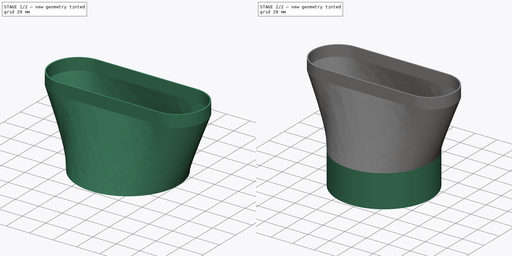
[diagram: build sequence overview — one tinted view per stage of 2, left to right]
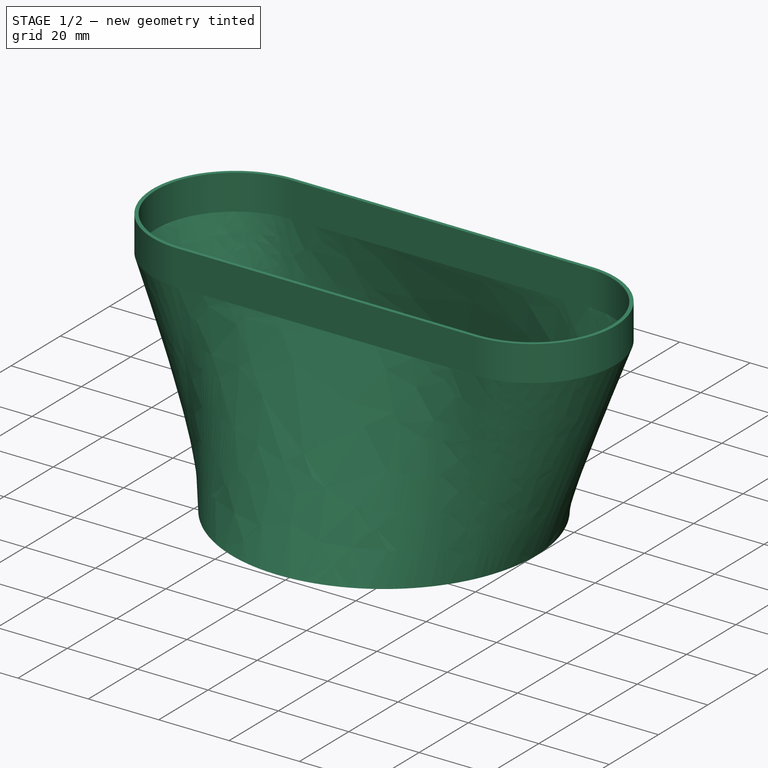
[diagram: stage 1 of 2 — iso view after this stage's code; geometry added in this stage tinted green]
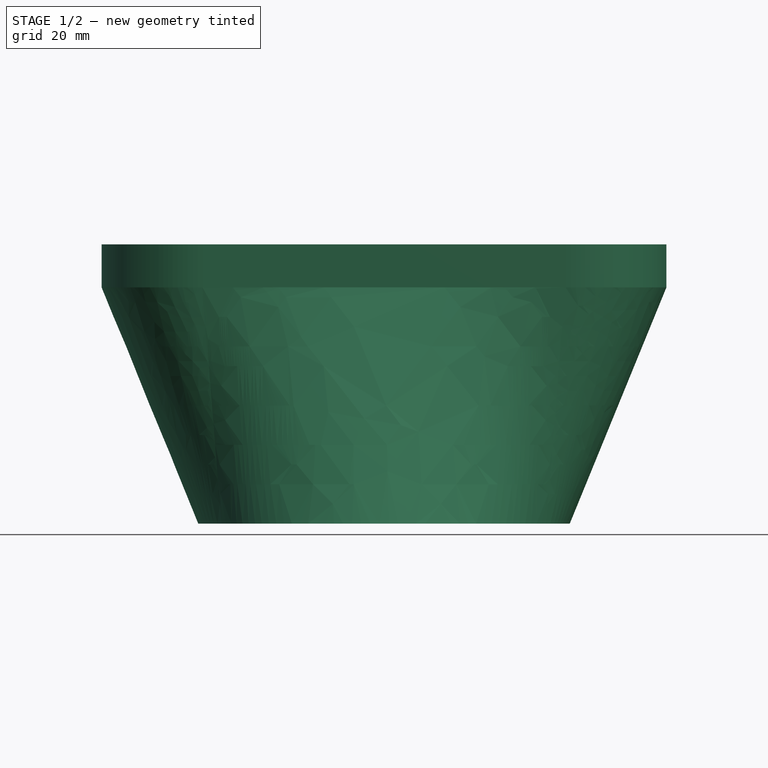
[diagram: stage 1 of 2 — front view after this stage's code; geometry added in this stage tinted green]
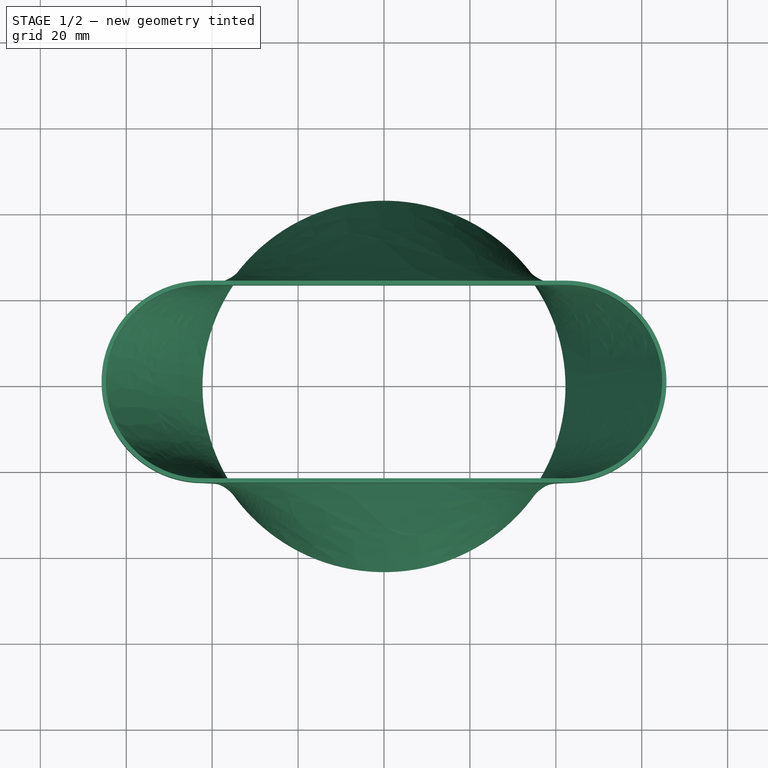
[diagram: stage 1 of 2 — top view after this stage's code; geometry added in this stage tinted green]
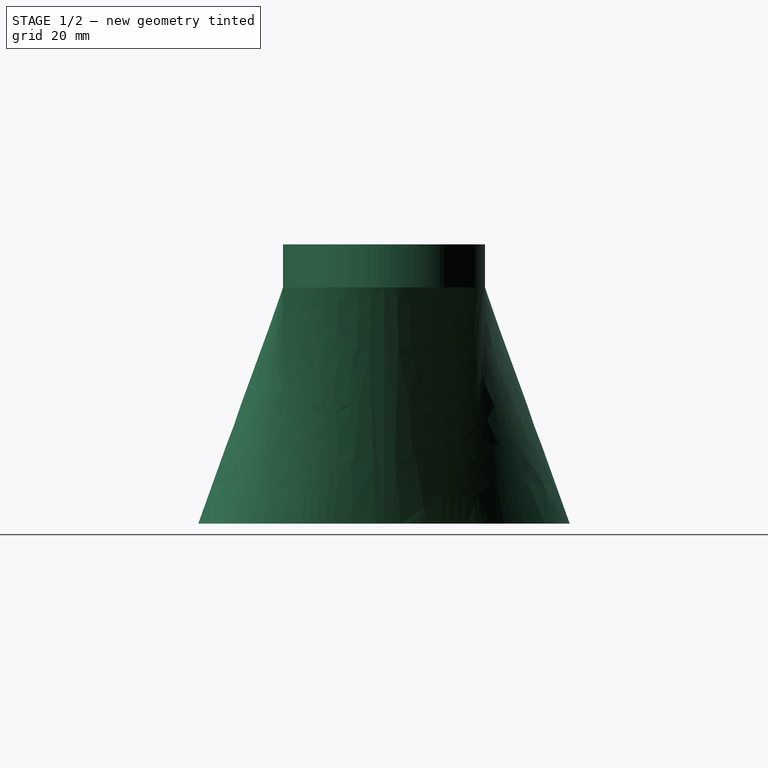
[diagram: stage 1 of 2 — right view after this stage's code; geometry added in this stage tinted green]
FCSTD DOCUMENT  (FreeCAD 0.21R33771 (Git))
Label: MilwaukeeBlowerAdapter
License: All rights reserved
LicenseURL: https://en.wikipedia.org/wiki/All_rights_reserved
objects: Sketcher::SketchObject×2, PartDesign::Pad×2, PartDesign::Plane×1, PartDesign::AdditiveLoft×1, PartDesign::Body×1
note: 10 computed .brp shape members not serialized (recipe doc carries the construction recipe); baked Part::Feature solids carry a one-line shape summary decoded from their .brp

FEATURE [Sketcher::SketchObject] Sketch
  FullyConstrained = true
  MapMode = 5
  Support = -> [XY_Plane]
  sketch-geometry (4):
    g0: Circle CenterX=0 CenterY=0 CenterZ=0 NormalX=0 NormalY=0 NormalZ=1 AngleXU=0 Radius=42.25
    g1: Circle CenterX=0 CenterY=0 CenterZ=0 NormalX=0 NormalY=0 NormalZ=1 AngleXU=0 Radius=43.25
    g2: GeomPoint X=-42.25 Y=0 Z=0
    g3: GeomPoint X=-43.25 Y=0 Z=0
  constraints (8):
    c: Coincident(g0,g-1)
    c: Diameter(g0) = 84.5
    c: Coincident(g1,g0)
    c: PointOnObject(g2,g0)
    c: PointOnObject(g3,g1)
    c: PointOnObject(g3,g-1)
    c: PointOnObject(g2,g-1)
    c: DistanceX(g3,g2) = 1
FEATURE [PartDesign::Plane] DatumPlane
  AttachmentOffset = pos=(0,0,55) rot=(0,0,1;0rad)
  Length = 152.83
  MapMode = 2
  Placement = pos=(0,0,55) rot=(0,0,1;0rad)
  ResizeMode = 0
  Support = -> [Sketch]
  Width = 107.83
FEATURE [Sketcher::SketchObject] Sketch001
  ExternalGeometry = -> [Sketch]
  FullyConstrained = true
  MapMode = 5
  Placement = pos=(0,0,55) rot=(0,0,1;0rad)
  Support = -> [DatumPlane]
  sketch-geometry (8):
    g0: ArcOfCircle CenterX=-42.25 CenterY=0 CenterZ=0 NormalX=0 NormalY=0 NormalZ=1 AngleXU=0 Radius=22.5 StartAngle=1.5708 EndAngle=4.71239
    g1: ArcOfCircle CenterX=42.25 CenterY=0 CenterZ=0 NormalX=0 NormalY=0 NormalZ=1 AngleXU=0 Radius=22.5 StartAngle=4.71239 EndAngle=7.85398
    g2: LineSegment StartX=-42.25 StartY=-22.5 StartZ=0 EndX=42.25 EndY=-22.5 EndZ=0
    g3: LineSegment StartX=42.25 StartY=22.5 StartZ=0 EndX=-42.25 EndY=22.5 EndZ=0
    g4: ArcOfCircle CenterX=-42.25 CenterY=0 CenterZ=0 NormalX=0 NormalY=0 NormalZ=1 AngleXU=0 Radius=23.5 StartAngle=1.5708 EndAngle=4.71239
    g5: ArcOfCircle CenterX=42.25 CenterY=0 CenterZ=0 NormalX=0 NormalY=0 NormalZ=1 AngleXU=0 Radius=23.5 StartAngle=4.71239 EndAngle=7.85398
    g6: LineSegment StartX=-42.25 StartY=-23.5 StartZ=0 EndX=42.25 EndY=-23.5 EndZ=0
    g7: LineSegment StartX=42.25 StartY=23.5 StartZ=0 EndX=-42.25 EndY=23.5 EndZ=0
  constraints (17):
    c: Tangent(g0,g2) = -1.5708
    c: Tangent(g2,g1) = -1.5708
    c: Tangent(g1,g3) = -1.5708
    c: Tangent(g3,g0) = -1.5708
    c: Equal(g0,g1)
    c: Symmetric(g0,g1,g-2)
    c: PointOnObject(g0,g-1)
    c: PointOnObject(g0,g-3)
    c: DistanceY(g0,g0) = 45
    c: Tangent(g4,g6) = -1.5708
    c: Tangent(g6,g5) = -1.5708
    c: Tangent(g5,g7) = -1.5708
    c: Tangent(g7,g4) = -1.5708
    c: Equal(g4,g5)
    c: Coincident(g4,g0)
    c: Coincident(g5,g1)
    c: DistanceY(g0,g4) = 1
FEATURE [PartDesign::AdditiveLoft] AdditiveLoft
  Closed = false
  Profile = -> Sketch
  Ruled = false
  Sections = -> [Sketch001]
FEATURE [PartDesign::Pad] Pad
  BaseFeature = -> AdditiveLoft
  Direction = (0,0,1)
  Length = 10
  Length2 = 10
  Profile = -> AdditiveLoft [Face3]
  Type = 0
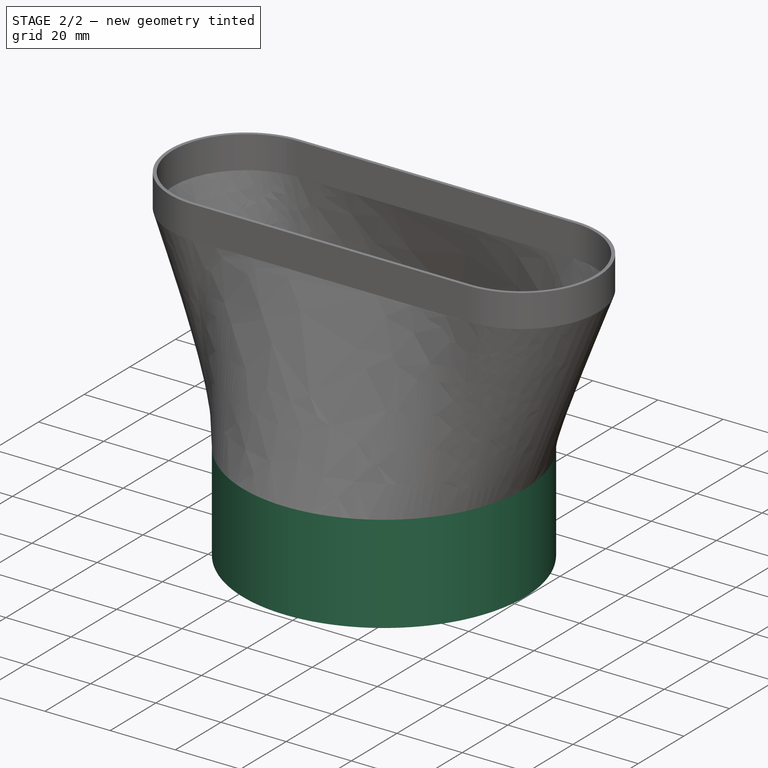
[diagram: stage 2 of 2 — iso view after this stage's code; geometry added in this stage tinted green]
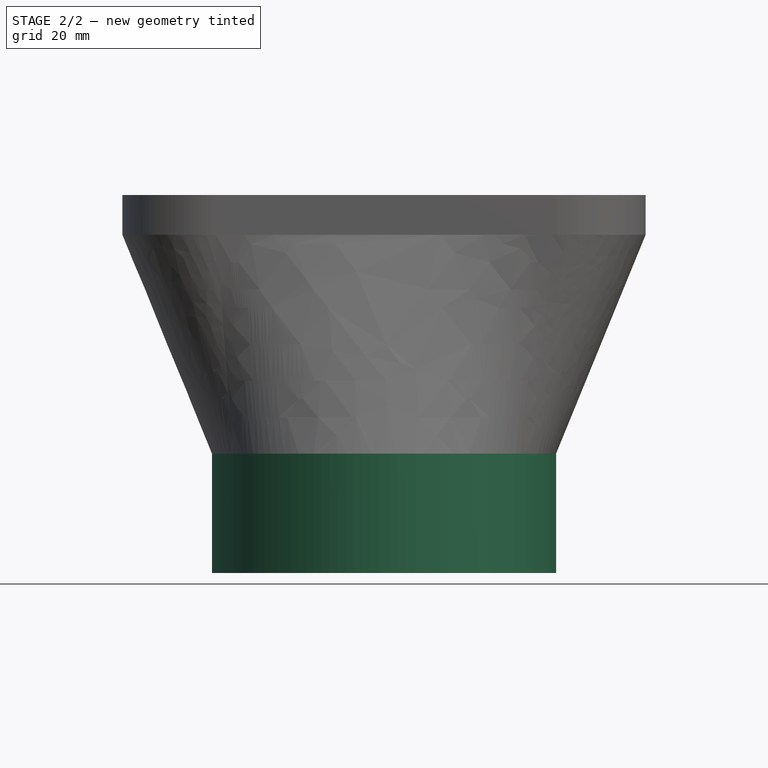
[diagram: stage 2 of 2 — front view after this stage's code; geometry added in this stage tinted green]
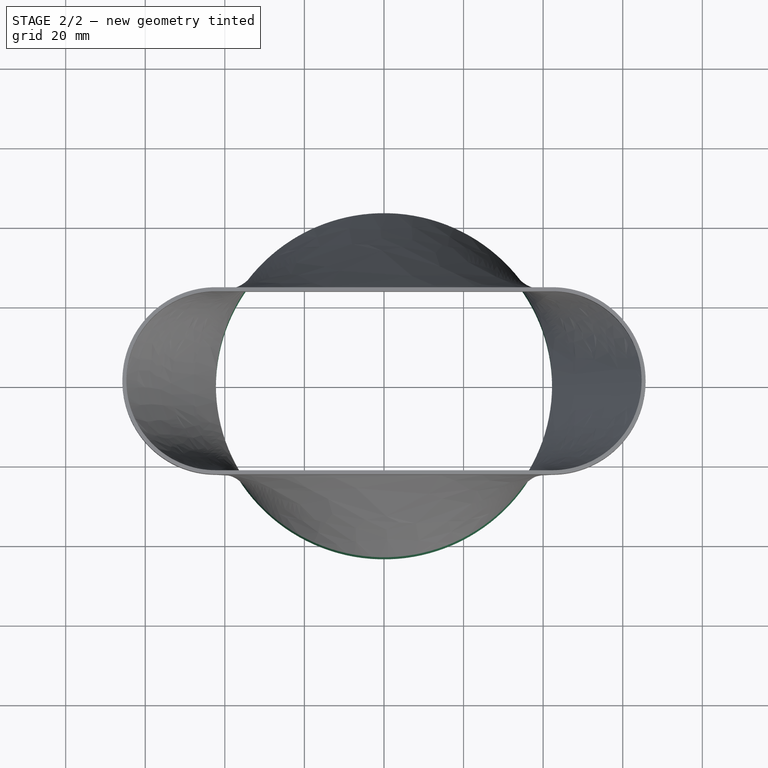
[diagram: stage 2 of 2 — top view after this stage's code; geometry added in this stage tinted green]
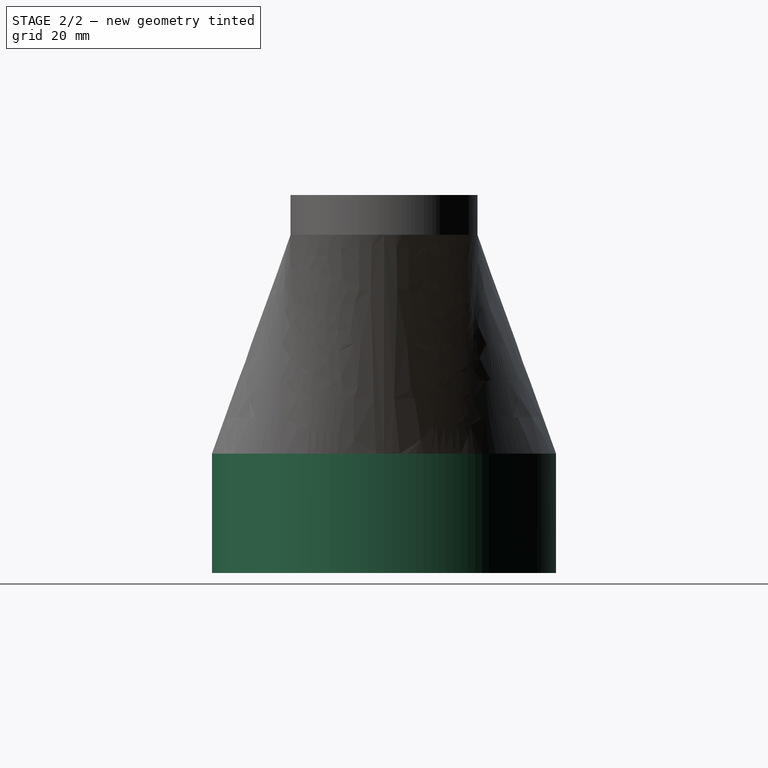
[diagram: stage 2 of 2 — right view after this stage's code; geometry added in this stage tinted green]
FEATURE [PartDesign::Pad] Pad001
  BaseFeature = -> Pad
  Direction = (0,0,-1)
  Length = 30
  Length2 = 10
  Profile = -> Pad [Face1]
  Type = 0
FEATURE [PartDesign::Body] Body  label="Körper"
  Group = -> [Sketch,DatumPlane,Sketch001,AdditiveLoft,Pad,Pad001]
  Origin = -> Origin
  Tip = -> Pad001
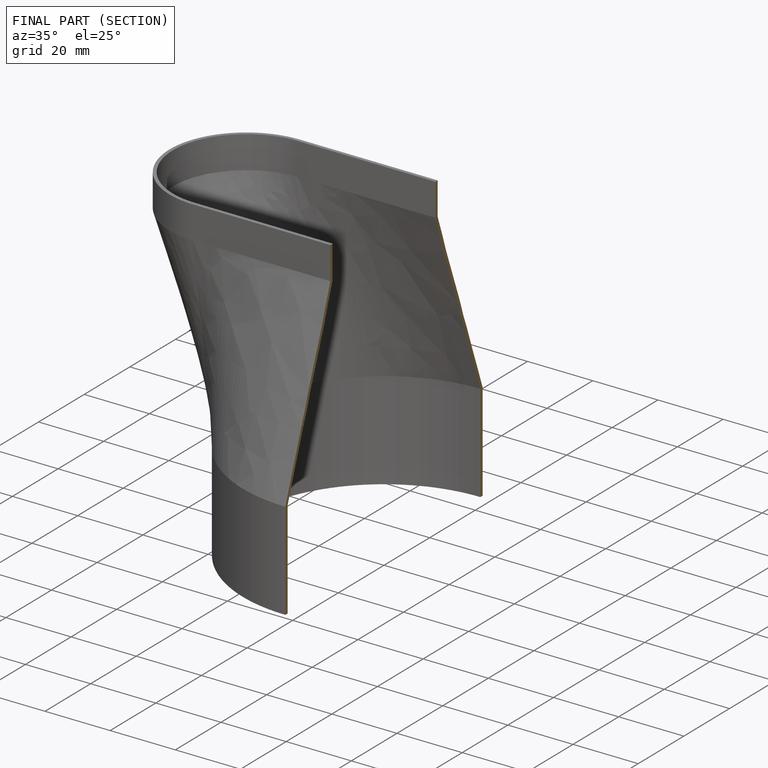
[diagram: finished part — half-section view (interior)]
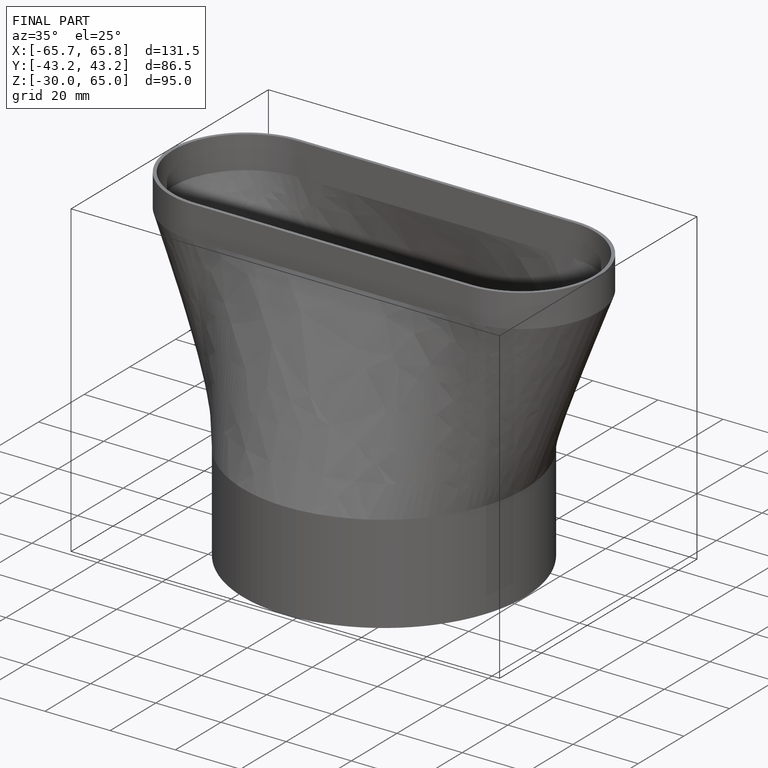
[diagram: finished part — iso view with bounding-box wireframe]
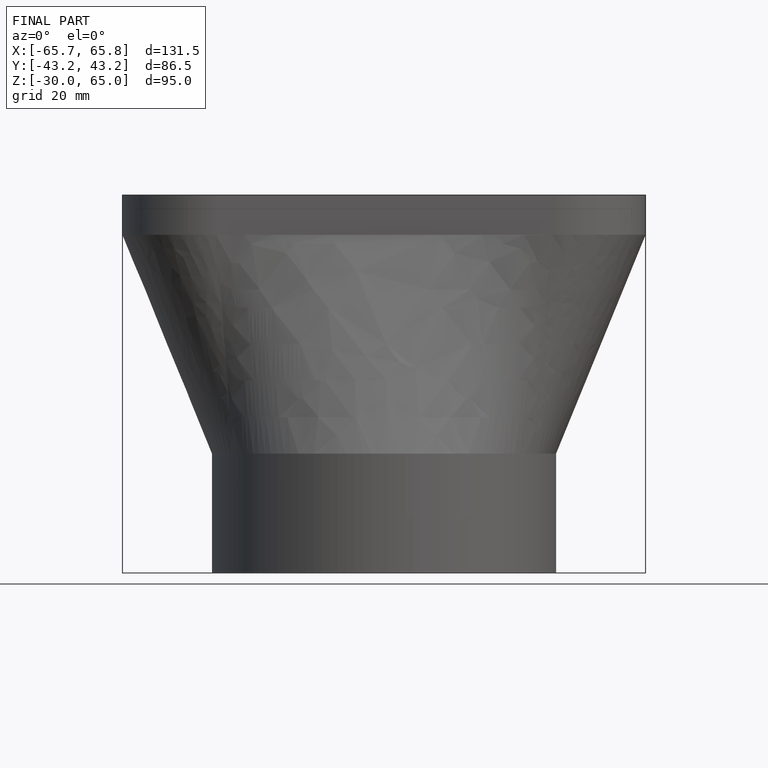
[diagram: finished part — front view with bounding-box wireframe]
